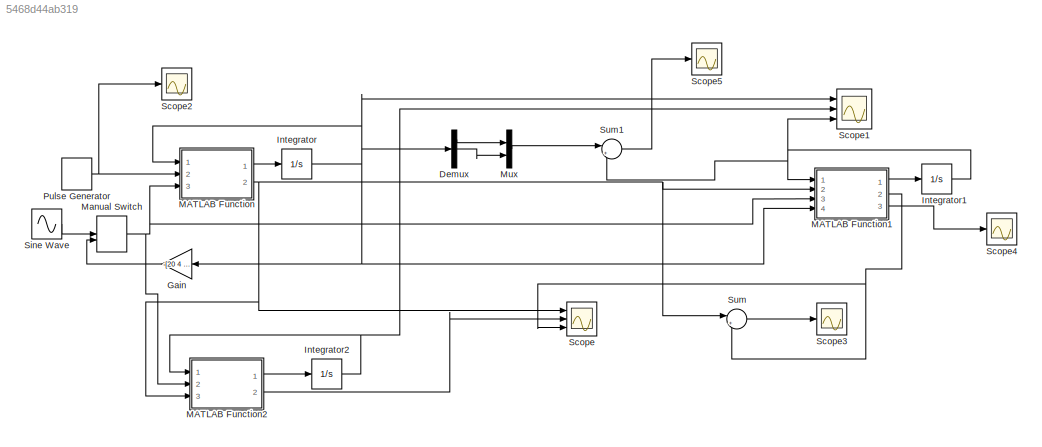
MODEL slx_5468d44ab319
KIND model
CONFIG AbsTol = auto
CONFIG EnableMultiTasking = off
CONFIG FixedStep = 0.001
CONFIG MaxStep = auto
CONFIG MinStep = auto
CONFIG RelTol = 1e-3
CONFIG SampleTimeConstraint = Unconstrained
CONFIG SolverName = ode4
CONFIG StartTime = 0.0
CONFIG StopTime = 50
BLOCK [Demux] Demux
  Outputs = 3
  Ports = [1, 3]
BLOCK [Gain] Gain
  Gain = -[20 4 0]
  Multiplication = Matrix(K*u) (u vector)
  NameLocation = top
BLOCK [Integrator] Integrator
  InitialCondition = [1;1;1]
  Ports = [1, 1]
BLOCK [Integrator] Integrator1
  InitialCondition = [1;1]
  Ports = [1, 1]
BLOCK [Integrator] Integrator2
  InitialCondition = [1;1;1]
  Ports = [1, 1]
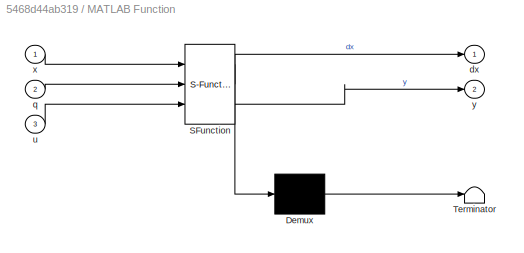
BLOCK [SubSystem] MATLAB Function
  ErrorFcn = Stateflow.Translate.translate
  PermitHierarchicalResolution = ExplicitOnly
  Ports = [3, 2]
  RequestExecContextInheritance = off
  SFBlockType = MATLAB Function
  TreatAsAtomicUnit = on
BLOCK [Demux] MATLAB Function/ Demux 
  Outputs = 1
  Ports = [1, 1]
BLOCK [S-Function] MATLAB Function/ SFunction 
  EnableBusSupport = on
  FunctionName = sf_sfun
  PortCounts = [3 3]
  Ports = [3, 3]
  SFcnIsStateOwnerBlock = off
  SFunctionDeploymentMode = off
  Tag = Stateflow S-Function 2
BLOCK [Terminator] MATLAB Function/ Terminator 
BLOCK [Outport] MATLAB Function/dx
BLOCK [Inport] MATLAB Function/q
  Port = 2
BLOCK [Inport] MATLAB Function/u
  Port = 3
BLOCK [Inport] MATLAB Function/x
BLOCK [Outport] MATLAB Function/y
  Port = 2
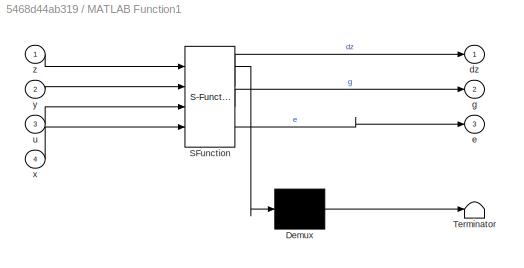
BLOCK [SubSystem] MATLAB Function1
  ErrorFcn = Stateflow.Translate.translate
  PermitHierarchicalResolution = ExplicitOnly
  Ports = [4, 3]
  RequestExecContextInheritance = off
  SFBlockType = MATLAB Function
  TreatAsAtomicUnit = on
BLOCK [Demux] MATLAB Function1/ Demux 
  Outputs = 1
  Ports = [1, 1]
BLOCK [S-Function] MATLAB Function1/ SFunction 
  EnableBusSupport = on
  FunctionName = sf_sfun
  PortCounts = [4 4]
  Ports = [4, 4]
  SFcnIsStateOwnerBlock = off
  SFunctionDeploymentMode = off
  Tag = Stateflow S-Function 1
BLOCK [Terminator] MATLAB Function1/ Terminator 
BLOCK [Outport] MATLAB Function1/dz
BLOCK [Outport] MATLAB Function1/e
  Port = 3
BLOCK [Outport] MATLAB Function1/g
  Port = 2
BLOCK [Inport] MATLAB Function1/u
  Port = 3
BLOCK [Inport] MATLAB Function1/x
  Port = 4
BLOCK [Inport] MATLAB Function1/y
  Port = 2
BLOCK [Inport] MATLAB Function1/z
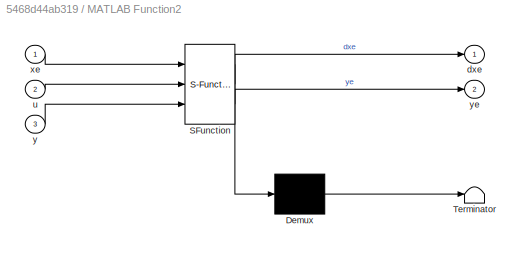
BLOCK [SubSystem] MATLAB Function2
  ErrorFcn = Stateflow.Translate.translate
  PermitHierarchicalResolution = ExplicitOnly
  Ports = [3, 2]
  RequestExecContextInheritance = off
  SFBlockType = MATLAB Function
  TreatAsAtomicUnit = on
BLOCK [Demux] MATLAB Function2/ Demux 
  Outputs = 1
  Ports = [1, 1]
BLOCK [S-Function] MATLAB Function2/ SFunction 
  EnableBusSupport = on
  FunctionName = sf_sfun
  PortCounts = [3 3]
  Ports = [3, 3]
  SFcnIsStateOwnerBlock = off
  SFunctionDeploymentMode = off
  Tag = Stateflow S-Function 3
BLOCK [Terminator] MATLAB Function2/ Terminator 
BLOCK [Outport] MATLAB Function2/dxe
BLOCK [Inport] MATLAB Function2/u
  Port = 2
BLOCK [Inport] MATLAB Function2/xe
BLOCK [Inport] MATLAB Function2/y
  Port = 3
BLOCK [Outport] MATLAB Function2/ye
  Port = 2
BLOCK [ManualSwitch] Manual Switch
BLOCK [Mux] Mux
  DisplayOption = bar
  Inputs = 2
  Ports = [2, 1]
BLOCK [DiscretePulseGenerator] Pulse Generator
  Amplitude = 0
  Ports = [0, 1]
  PulseType = Time based
  PulseWidth = 40
BLOCK [Scope] Scope
  Floating = off
  NumInputPorts = 3
  Ports = [3]
  ScopeSpecificationString = Simulink.scopes.TimeScopeBlockCfg('CurrentConfiguration', extmgr.ConfigurationSet(extmgr.Configuration('Core','General UI',true),extmgr.Configuration('Core','Source UI',true),extmgr.Configuration('Sources','WiredSimulink',true),extmgr.Configuration('Visuals','Time Domain',true,'SerializedDisplays',{struct('MinYLimReal','-4969210680389.04004','MaxYLimReal','552134520044.33765','YLabelReal','','MinY...<+1775ch>
BLOCK [Scope] Scope1
  Floating = off
  NumInputPorts = 3
  Ports = [3]
  ScopeSpecificationString = Simulink.scopes.TimeScopeBlockCfg('CurrentConfiguration', extmgr.ConfigurationSet(extmgr.Configuration('Core','General UI',true),extmgr.Configuration('Core','Source UI',true),extmgr.Configuration('Sources','WiredSimulink',true,'DataLoggingVariableName','ScopeData1'),extmgr.Configuration('Visuals','Time Domain',true,'SerializedDisplays',{struct('MinYLimReal','-6625614240518.58203','MaxYLimReal','15...<+1810ch>
BLOCK [Scope] Scope2
  Floating = off
  NumInputPorts = 1
  Ports = [1]
  ScopeSpecificationString = Simulink.scopes.TimeScopeBlockCfg('CurrentConfiguration', extmgr.ConfigurationSet(extmgr.Configuration('Core','General UI',true),extmgr.Configuration('Core','Source UI',true),extmgr.Configuration('Sources','WiredSimulink',true,'DataLoggingVariableName','ScopeData2'),extmgr.Configuration('Visuals','Time Domain',true,'SerializedDisplays',{struct('MinYLimReal','-1.00000','MaxYLimReal','1.00000','YLab...<+1374ch>
BLOCK [Scope] Scope3
  Floating = off
  NumInputPorts = 1
  Ports = [1]
  ScopeSpecificationString = Simulink.scopes.TimeScopeBlockCfg('CurrentConfiguration', extmgr.ConfigurationSet(extmgr.Configuration('Core','General UI',true),extmgr.Configuration('Core','Source UI',true),extmgr.Configuration('Sources','WiredSimulink',true,'DataLoggingVariableName','ScopeData3'),extmgr.Configuration('Visuals','Time Domain',true,'SerializedDisplays',{struct('MinYLimReal','-11724823030161081190030687908202241920...<+1770ch>
BLOCK [Scope] Scope4
  Floating = off
  NumInputPorts = 1
  Ports = [1]
  ScopeSpecificationString = Simulink.scopes.TimeScopeBlockCfg('CurrentConfiguration', extmgr.ConfigurationSet(extmgr.Configuration('Core','General UI',true),extmgr.Configuration('Core','Source UI',true),extmgr.Configuration('Sources','WiredSimulink',true,'DataLoggingVariableName','ScopeData1'),extmgr.Configuration('Visuals','Time Domain',true,'SerializedDisplays',{struct('MinYLimReal','-442368.00000','MaxYLimReal','49152.000...<+1506ch>
BLOCK [Scope] Scope5
  Floating = off
  NumInputPorts = 1
  Ports = [1]
  ScopeSpecificationString = Simulink.scopes.TimeScopeBlockCfg('CurrentConfiguration', extmgr.ConfigurationSet(extmgr.Configuration('Core','General UI',true),extmgr.Configuration('Core','Source UI',true),extmgr.Configuration('Sources','WiredSimulink',true,'DataLoggingVariableName','ScopeData1'),extmgr.Configuration('Visuals','Time Domain',true,'SerializedDisplays',{struct('MinYLimReal','-49152.00000','MaxYLimReal','442368.000...<+1431ch>
BLOCK [Sin] Sine Wave
  Ports = [0, 1]
  SampleTime = 0
BLOCK [Sum] Sum
  Inputs = |+-
  Ports = [2, 1]
BLOCK [Sum] Sum1
  Inputs = |+-
  Ports = [2, 1]
LINE Demux:1 -> Mux:1
LINE Demux:2 -> Mux:2
LINE Gain:1 -> Manual Switch:2
NET Integrator1:1 -> MATLAB Function1:1, Scope1:3, Sum1:2
NET Integrator2:1 -> MATLAB Function2:1, Scope1:2
NET Integrator:1 -> Demux:1, Gain:1, MATLAB Function1:4, MATLAB Function:1, Scope1:1
LINE MATLAB Function1:1 -> Integrator1:1
NET MATLAB Function1:2 -> Scope:3, Sum:2
LINE MATLAB Function1:3 -> Scope4:1
LINE MATLAB Function2:1 -> Integrator2:1
LINE MATLAB Function2:2 -> Scope:2
LINE MATLAB Function:1 -> Integrator:1
NET MATLAB Function:2 -> MATLAB Function1:2, MATLAB Function2:3, Scope:1, Sum:1
NET Manual Switch:1 -> MATLAB Function1:3, MATLAB Function2:2, MATLAB Function:3
LINE Mux:1 -> Sum1:1
NET Pulse Generator:1 -> MATLAB Function:2, Scope2:1
LINE Sine Wave:1 -> Manual Switch:1
LINE Sum1:1 -> Scope5:1
LINE Sum:1 -> Scope3:1
note: NET lines group one-source signal fan-out (src -> all destinations, sorted); 1:1 wires keep LINE
CHART MATLAB Function1 states=1 transitions=1
  STATE_LABEL 'eML_blk_kernel()'
  STATE_LABEL "SCRIPT:\nfunction [dz,g,e] = fcn(z,y,u,x)\nA=[2 1 0;0 -3 0;-1 0 -1];\nB=[0 1 0]';\nC=[0 1 0;0 0 1];\nD=[1 0;-2 0;0 2];\nA0=A+D*C;\nP=[1 0 0;0 1 0];\nPi=[1 0;0 1;0 0];\nF=P*A0*Pi;\n%M=C*Pi;\nM=[0 1;0 0];\nG=P*B;\ndz=F*z+G*u-E*y;\ng=M*z;\ne=z-P*x;"
CHART MATLAB Function states=1 transitions=1
  STATE_LABEL 'eML_blk_kernel()'
  STATE_LABEL "SCRIPT:\nfunction [dx,y] = fcn(x,q,u)\nA=[2 1 0;0 -3 0;-1 0 -1];\nB=[0 1 0]';\nC=[0 1 0;0 0 1];\nL=[0 0 1]';\ny=C*x;\ndx=A*x+B*u+L*q;\n"
CHART MATLAB Function2 states=1 transitions=1
  STATE_LABEL 'eML_blk_kernel()'
  STATE_LABEL "SCRIPT:\nfunction [dxe,ye] = fcn(xe,u,y)\nA=[2 1 0;0 -3 0;-1 0 -1];\nB=[0 1 0]';\nC=[0 1 0;0 0 1];\nD=[1 0;1 0;0 2];\nye=C*xe;\ndxe=A*xe+B*u+D*(y-ye);\n"
CHART  states=0 transitions=0
CHART  states=0 transitions=0
CHART  states=0 transitions=0
